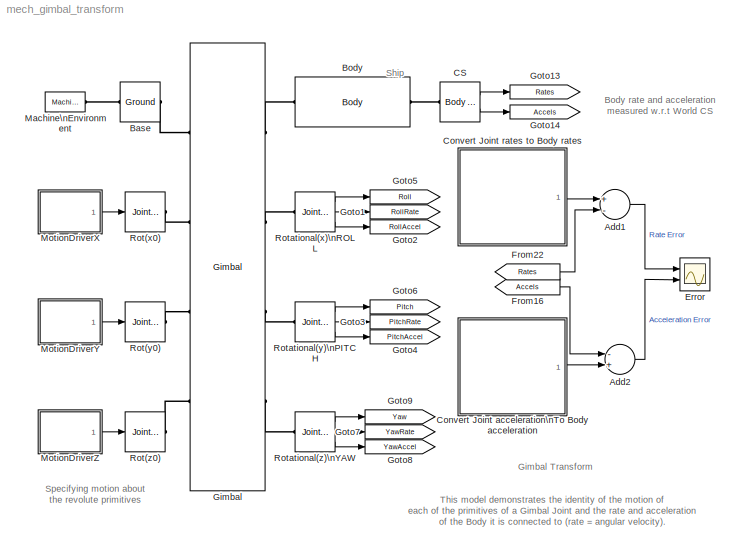
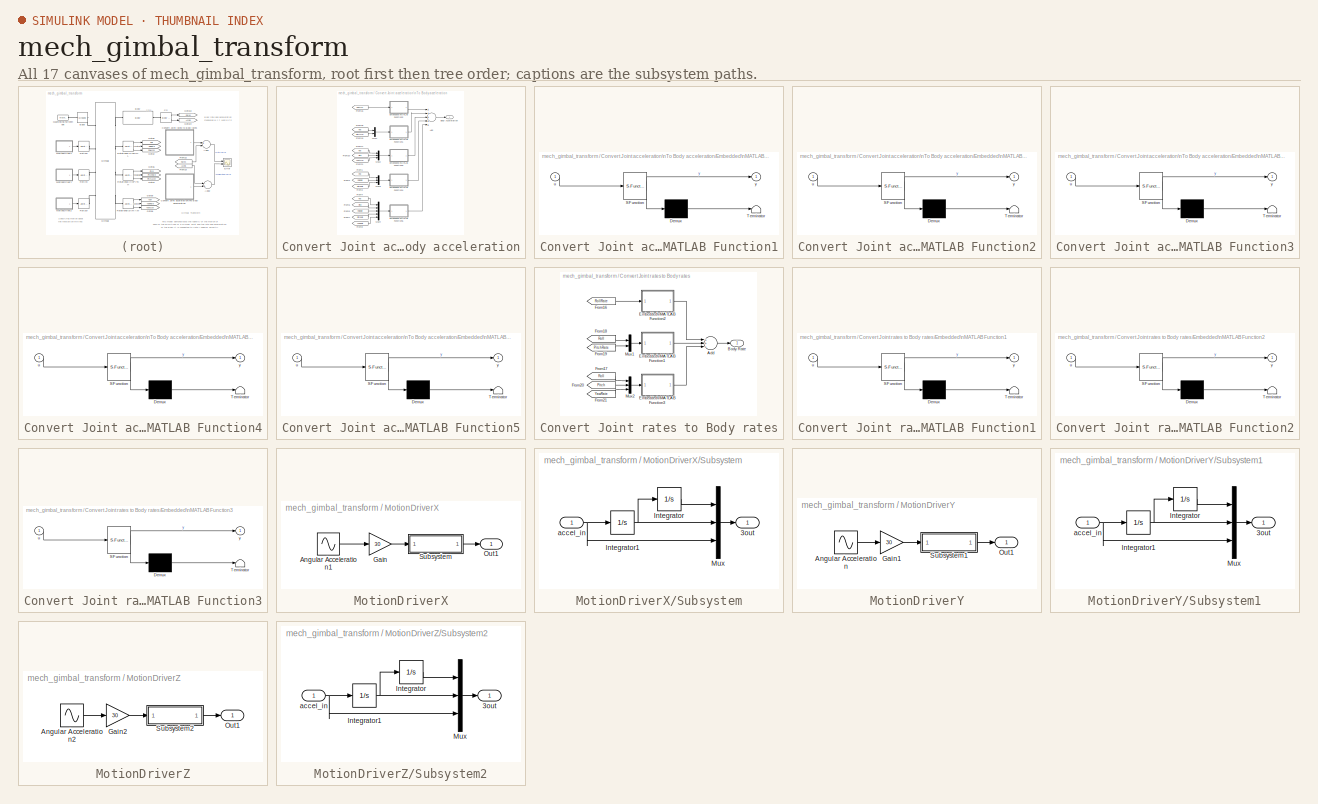
[diagram: thumbnail index - all 17 canvases of the model, root first then tree order]
MODEL mech_gimbal_transform
KIND model
BLOCK [Sum] Add1
  InputSameDT = off
  Inputs = +-
  OutDataType = sfix(16)
  OutDataTypeMode = Inherit via internal rule
  OutDataTypeStr = Inherit: Inherit via internal rule
  OutScaling = 2^-10
  Ports = [2, 1]
  SaturateOnIntegerOverflow = off
BLOCK [Sum] Add2
  InputSameDT = off
  Inputs = -+
  OutDataType = sfix(16)
  OutDataTypeMode = Inherit via internal rule
  OutDataTypeStr = Inherit: Inherit via internal rule
  OutScaling = 2^-10
  Ports = [2, 1]
  SaturateOnIntegerOverflow = off
BLOCK [Reference] Base  REF=mblibv1/Bodies/Ground
  ClassName = Ground
  CoordPosition = [0 0 0]
  CoordPositionUnits = m
  DialogClass = GroundBlock
  DialogController = MECH.DynMechDlgSource
  FunctionWithSeparateData = off
  LeftPortType = env
  MachineId = [0 0]
  PhysicalDomain = Mechanical
  Ports = [0, 0, 0, 0, 0, 1, 1]
  RTWMemSecDataConstants = Inherit from model
  RTWMemSecDataInternal = Inherit from model
  RTWMemSecDataParameters = Inherit from model
  RTWMemSecFuncExecute = Inherit from model
  RTWMemSecFuncInitTerm = Inherit from model
  RightPortType = workingframe
  ShowEnvPort = on
  ShowPortLabels = FromPortIcon
  SourceBlock = mblibv1/Bodies/Ground
  SourceType = Ground
  StateVectorMgrId = -1
  SystemSampleTime = -1
  UserData = DataTag0
  UserDataPersistent = on
BLOCK [Reference] Body  REF=mblibv1/Bodies/Body
  AttachedToCS = 1
  BodyColor = [0.5 0.5 0.5]
  CG = Right$CG$[0 0 0]$WORLD$WORLD$m$[0 0 0]$Euler X-Y-Z$deg$WORLD$false
  CGPos = [0 0 0]
  CGRot = [0 0 0]
  CS0Pos = []
  CS0Rot = []
  CS10Pos = []
  CS10Rot = []
  CS11Pos = []
  CS11Rot = []
  CS12Pos = []
  CS12Rot = []
  CS13Pos = []
  CS13Rot = []
  CS14Pos = []
  CS14Rot = []
  CS15Pos = []
  CS15Rot = []
  CS16Pos = []
  CS16Rot = []
  CS17Pos = []
  CS17Rot = []
  CS18Pos = []
  CS18Rot = []
  CS19Pos = []
  CS19Rot = []
  CS1Pos = [0 0 0]
  CS1Rot = [0 0 0]
  CS20Pos = []
  CS20Rot = []
  CS2Pos = [-87.81 -10 0]
  CS2Rot = [0 0 0]
  CS3Pos = [-87.81  10 0]
  CS3Rot = [0 0 0]
  CS4Pos = [94.99  0 0]
  CS4Rot = [0 0 0]
  CS5Pos = [-87.81 -8 -10]
  CS5Rot = [0 0 0]
  CS6Pos = [-87.81 8 -10]
  CS6Rot = [0 0 0]
  CS7Pos = [80.0  0 -10]
  CS7Rot = [0 0 0]
  CS8Pos = [0 0 0]
  CS8Rot = [0 0 0]
  CS9Pos = []
  CS9Rot = []
  ClassName = Body
  Density = 1
  DensityUnits = kg/m^3
  DensityUse = false
  DialogClass = MechanicalBodyBlock
  DialogController = MECH.DynMechDlgSource
  GraphicsMode = 1
  GraphicsObj = []
  Inertia = [0.06 0 0;0 0.7 0;0 0 0.75]*0.25
  InertiaUnits = kg*m^2
  LConnTagsString = CS1
  LeftPortType = workingframe
  Mass = 1
  MassUnits = kg
  PhysicalDomain = mechanical
  Ports = [0, 0, 0, 0, 0, 1, 1]
  RConnTagsString = CS8
  RightPortType = workingframe
  Shape = Cylinder
  ShapeDims = [1 1]
  ShapeUnits = m
  ShapeUse = false
  SourceBlock = mblibv1/Bodies/Body
  SourceType = Body
  SubClassName = Unknown
  WorkingFrames = Left$CS1$[0 0 0]$WORLD$WORLD$m$[0 0 0]$Euler X-Y-Z$deg$WORLD$true#Right$CS8$[0 0 0]$WORLD$WORLD$m$[0 0 0]$Euler X-Y-Z$deg$WORLD$true#Left$CS2$[-87.81 -10 0]$WORLD$WORLD$cm$[0 0 0]$Euler X-Y-Z$deg$WORLD$false#Left$CS5$[-87.81 -8 -10]$WORLD$WORLD$cm$[0 0 0]$Euler X-Y-Z$deg$WORLD$false#Left$CS3$[-87.81  10 0]$WORLD$WORLD$cm$[0 0 0]$Euler X-Y-Z$deg$WORLD$false#Left$CS6$[-87.81 8 -10]$WORLD$WORLD$cm$[0...<+181ch>
BLOCK [Reference] CS  REF=mblibv1/Sensors & \nActuators/Body Sensor
  Acceleration = off
  AccelerationUnits = m/s^2
  ActiveIO = on
  Angle = on
  AngleUnits = deg
  ArcAcceleration = on
  ArcAccelerationUnits = rad/s^2
  ArcVelocity = on
  ArcVelocityUnits = rad/s
  ClassName = BodySensor
  CoordPosition = off
  CoordPositionUnits = m
  DialogClass = MechanicalSensorBlock
  DialogController = MECH.DynMechDlgSource
  FunctionWithSeparateData = off
  Muxed = off
  OutputVector = [ 3 3 ]
  PhysicalDomain = Mechanical
  PortType = blob
  Ports = [0, 2, 0, 0, 0, 1]
  Pose = off
  Quaternion = on
  QuaternionDDT = off
  QuaternionDT = off
  QuaternionUnits = off
  RTWMemSecDataConstants = Inherit from model
  RTWMemSecDataInternal = Inherit from model
  RTWMemSecDataParameters = Inherit from model
  RTWMemSecFuncExecute = Inherit from model
  RTWMemSecFuncInitTerm = Inherit from model
  ReferenceFrame = Absolute (World)
  ShowPortLabels = FromPortIcon
  SourceBlock = mblibv1/Sensors & \nActuators/Body Sensor
  SourceType = Body Sensor
  SystemSampleTime = -1
  Velocity = off
  VelocityUnits = m/s
  Width = 6
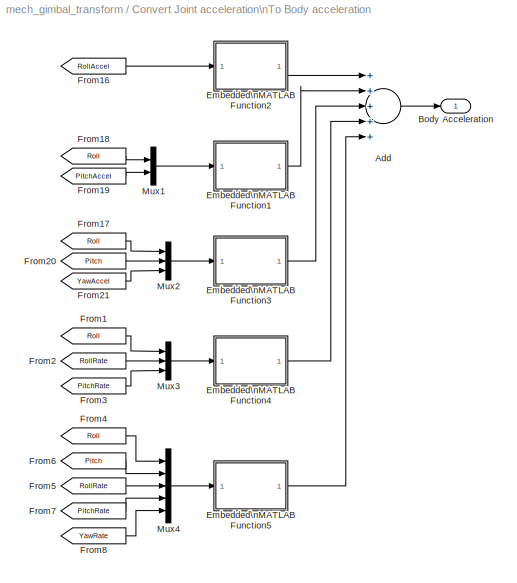
BLOCK [SubSystem] Convert Joint acceleration\nTo Body acceleration
  FunctionWithSeparateData = off
  MaskHideContents = off
  MinAlgLoopOccurrences = off
  Opaque = off
  Ports = [0, 1]
  PropExecContextOutsideSubsystem = off
  RTWSystemCode = Auto
  RequestExecContextInheritance = off
BLOCK [Sum] Convert Joint acceleration\nTo Body acceleration/Add
  InputSameDT = off
  Inputs = +++++
  OutDataType = sfix(16)
  OutDataTypeMode = Inherit via internal rule
  OutDataTypeStr = Inherit: Inherit via internal rule
  OutScaling = 2^-10
  Ports = [5, 1]
  SaturateOnIntegerOverflow = off
BLOCK [Outport] Convert Joint acceleration\nTo Body acceleration/Body Acceleration
  IconDisplay = Port number
  OutDataType = sfix(16)
  OutScaling = 2^0
BLOCK [SubSystem] Convert Joint acceleration\nTo Body acceleration/Embedded\nMATLAB Function1
  FunctionWithSeparateData = off
  MaskDescription = Embedded MATLAB block
  MaskDisplay = disp('fcn');
  MaskHideContents = off
  MaskIconFrame = on
  MaskIconOpaque = off
  MaskIconRotate = none
  MaskIconUnits = autoscale
  MaskSelfModifiable = on
  MaskType = Stateflow
  MinAlgLoopOccurrences = off
  Opaque = off
  PermitHierarchicalResolution = ExplicitOnly
  Ports = [1, 1]
  PropExecContextOutsideSubsystem = off
  RTWSystemCode = Auto
  RequestExecContextInheritance = off
BLOCK [Demux] Convert Joint acceleration\nTo Body acceleration/Embedded\nMATLAB Function1/ Demux 
  Outputs = 1
  Ports = [1, 1]
BLOCK [S-Function] Convert Joint acceleration\nTo Body acceleration/Embedded\nMATLAB Function1/ SFunction 
  EnableBusSupport = off
  FunctionName = sf_sfun
  PortCounts = [1 2]
  Ports = [1, 2]
  Tag = Stateflow S-Function mech_gimbal_transform 4
BLOCK [Terminator] Convert Joint acceleration\nTo Body acceleration/Embedded\nMATLAB Function1/ Terminator 
BLOCK [Inport] Convert Joint acceleration\nTo Body acceleration/Embedded\nMATLAB Function1/u
  IconDisplay = Port number
  OutDataType = sfix(16)
  OutScaling = 2^0
BLOCK [Outport] Convert Joint acceleration\nTo Body acceleration/Embedded\nMATLAB Function1/y
  IconDisplay = Port number
  OutDataType = sfix(16)
  OutScaling = 2^0
BLOCK [SubSystem] Convert Joint acceleration\nTo Body acceleration/Embedded\nMATLAB Function2
  FunctionWithSeparateData = off
  MaskDescription = Embedded MATLAB block
  MaskDisplay = disp('fcn');
  MaskHideContents = off
  MaskIconFrame = on
  MaskIconOpaque = off
  MaskIconRotate = none
  MaskIconUnits = autoscale
  MaskSelfModifiable = on
  MaskType = Stateflow
  MinAlgLoopOccurrences = off
  Opaque = off
  PermitHierarchicalResolution = ExplicitOnly
  Ports = [1, 1]
  PropExecContextOutsideSubsystem = off
  RTWSystemCode = Auto
  RequestExecContextInheritance = off
BLOCK [Demux] Convert Joint acceleration\nTo Body acceleration/Embedded\nMATLAB Function2/ Demux 
  Outputs = 1
  Ports = [1, 1]
BLOCK [S-Function] Convert Joint acceleration\nTo Body acceleration/Embedded\nMATLAB Function2/ SFunction 
  EnableBusSupport = off
  FunctionName = sf_sfun
  PortCounts = [1 2]
  Ports = [1, 2]
  Tag = Stateflow S-Function mech_gimbal_transform 5
BLOCK [Terminator] Convert Joint acceleration\nTo Body acceleration/Embedded\nMATLAB Function2/ Terminator 
BLOCK [Inport] Convert Joint acceleration\nTo Body acceleration/Embedded\nMATLAB Function2/u
  IconDisplay = Port number
  OutDataType = sfix(16)
  OutScaling = 2^0
BLOCK [Outport] Convert Joint acceleration\nTo Body acceleration/Embedded\nMATLAB Function2/y
  IconDisplay = Port number
  OutDataType = sfix(16)
  OutScaling = 2^0
BLOCK [SubSystem] Convert Joint acceleration\nTo Body acceleration/Embedded\nMATLAB Function3
  FunctionWithSeparateData = off
  MaskDescription = Embedded MATLAB block
  MaskDisplay = disp('fcn');
  MaskHideContents = off
  MaskIconFrame = on
  MaskIconOpaque = off
  MaskIconRotate = none
  MaskIconUnits = autoscale
  MaskSelfModifiable = on
  MaskType = Stateflow
  MinAlgLoopOccurrences = off
  Opaque = off
  PermitHierarchicalResolution = ExplicitOnly
  Ports = [1, 1]
  PropExecContextOutsideSubsystem = off
  RTWSystemCode = Auto
  RequestExecContextInheritance = off
BLOCK [Demux] Convert Joint acceleration\nTo Body acceleration/Embedded\nMATLAB Function3/ Demux 
  Outputs = 1
  Ports = [1, 1]
BLOCK [S-Function] Convert Joint acceleration\nTo Body acceleration/Embedded\nMATLAB Function3/ SFunction 
  EnableBusSupport = off
  FunctionName = sf_sfun
  PortCounts = [1 2]
  Ports = [1, 2]
  Tag = Stateflow S-Function mech_gimbal_transform 6
BLOCK [Terminator] Convert Joint acceleration\nTo Body acceleration/Embedded\nMATLAB Function3/ Terminator 
BLOCK [Inport] Convert Joint acceleration\nTo Body acceleration/Embedded\nMATLAB Function3/u
  IconDisplay = Port number
  OutDataType = sfix(16)
  OutScaling = 2^0
BLOCK [Outport] Convert Joint acceleration\nTo Body acceleration/Embedded\nMATLAB Function3/y
  IconDisplay = Port number
  OutDataType = sfix(16)
  OutScaling = 2^0
BLOCK [SubSystem] Convert Joint acceleration\nTo Body acceleration/Embedded\nMATLAB Function4
  FunctionWithSeparateData = off
  MaskDescription = Embedded MATLAB block
  MaskDisplay = disp('fcn');
  MaskHideContents = off
  MaskIconFrame = on
  MaskIconOpaque = off
  MaskIconRotate = none
  MaskIconUnits = autoscale
  MaskSelfModifiable = on
  MaskType = Stateflow
  MinAlgLoopOccurrences = off
  Opaque = off
  PermitHierarchicalResolution = ExplicitOnly
  Ports = [1, 1]
  PropExecContextOutsideSubsystem = off
  RTWSystemCode = Auto
  RequestExecContextInheritance = off
BLOCK [Demux] Convert Joint acceleration\nTo Body acceleration/Embedded\nMATLAB Function4/ Demux 
  Outputs = 1
  Ports = [1, 1]
BLOCK [S-Function] Convert Joint acceleration\nTo Body acceleration/Embedded\nMATLAB Function4/ SFunction 
  EnableBusSupport = off
  FunctionName = sf_sfun
  PortCounts = [1 2]
  Ports = [1, 2]
  Tag = Stateflow S-Function mech_gimbal_transform 7
BLOCK [Terminator] Convert Joint acceleration\nTo Body acceleration/Embedded\nMATLAB Function4/ Terminator 
BLOCK [Inport] Convert Joint acceleration\nTo Body acceleration/Embedded\nMATLAB Function4/u
  IconDisplay = Port number
  OutDataType = sfix(16)
  OutScaling = 2^0
BLOCK [Outport] Convert Joint acceleration\nTo Body acceleration/Embedded\nMATLAB Function4/y
  IconDisplay = Port number
  OutDataType = sfix(16)
  OutScaling = 2^0
BLOCK [SubSystem] Convert Joint acceleration\nTo Body acceleration/Embedded\nMATLAB Function5
  FunctionWithSeparateData = off
  MaskDescription = Embedded MATLAB block
  MaskDisplay = disp('fcn');
  MaskHideContents = off
  MaskIconFrame = on
  MaskIconOpaque = off
  MaskIconRotate = none
  MaskIconUnits = autoscale
  MaskSelfModifiable = on
  MaskType = Stateflow
  MinAlgLoopOccurrences = off
  Opaque = off
  PermitHierarchicalResolution = ExplicitOnly
  Ports = [1, 1]
  PropExecContextOutsideSubsystem = off
  RTWSystemCode = Auto
  RequestExecContextInheritance = off
BLOCK [Demux] Convert Joint acceleration\nTo Body acceleration/Embedded\nMATLAB Function5/ Demux 
  Outputs = 1
  Ports = [1, 1]
BLOCK [S-Function] Convert Joint acceleration\nTo Body acceleration/Embedded\nMATLAB Function5/ SFunction 
  EnableBusSupport = off
  FunctionName = sf_sfun
  PortCounts = [1 2]
  Ports = [1, 2]
  Tag = Stateflow S-Function mech_gimbal_transform 8
BLOCK [Terminator] Convert Joint acceleration\nTo Body acceleration/Embedded\nMATLAB Function5/ Terminator 
BLOCK [Inport] Convert Joint acceleration\nTo Body acceleration/Embedded\nMATLAB Function5/u
  IconDisplay = Port number
  OutDataType = sfix(16)
  OutScaling = 2^0
BLOCK [Outport] Convert Joint acceleration\nTo Body acceleration/Embedded\nMATLAB Function5/y
  IconDisplay = Port number
  OutDataType = sfix(16)
  OutScaling = 2^0
BLOCK [From] Convert Joint acceleration\nTo Body acceleration/From1
  CloseFcn = tagdialog Close
  GotoTag = Roll
  TagVisibility = global
BLOCK [From] Convert Joint acceleration\nTo Body acceleration/From16
  CloseFcn = tagdialog Close
  GotoTag = RollAccel
  TagVisibility = global
BLOCK [From] Convert Joint acceleration\nTo Body acceleration/From17
  CloseFcn = tagdialog Close
  GotoTag = Roll
  TagVisibility = global
BLOCK [From] Convert Joint acceleration\nTo Body acceleration/From18
  CloseFcn = tagdialog Close
  GotoTag = Roll
  TagVisibility = global
BLOCK [From] Convert Joint acceleration\nTo Body acceleration/From19
  CloseFcn = tagdialog Close
  GotoTag = PitchAccel
  TagVisibility = global
BLOCK [From] Convert Joint acceleration\nTo Body acceleration/From2
  CloseFcn = tagdialog Close
  GotoTag = RollRate
  TagVisibility = global
BLOCK [From] Convert Joint acceleration\nTo Body acceleration/From20
  CloseFcn = tagdialog Close
  GotoTag = Pitch
  TagVisibility = global
BLOCK [From] Convert Joint acceleration\nTo Body acceleration/From21
  CloseFcn = tagdialog Close
  GotoTag = YawAccel
  TagVisibility = global
BLOCK [From] Convert Joint acceleration\nTo Body acceleration/From3
  CloseFcn = tagdialog Close
  GotoTag = PitchRate
  TagVisibility = global
BLOCK [From] Convert Joint acceleration\nTo Body acceleration/From4
  CloseFcn = tagdialog Close
  GotoTag = Roll
  TagVisibility = global
BLOCK [From] Convert Joint acceleration\nTo Body acceleration/From5
  CloseFcn = tagdialog Close
  GotoTag = RollRate
  TagVisibility = global
BLOCK [From] Convert Joint acceleration\nTo Body acceleration/From6
  CloseFcn = tagdialog Close
  GotoTag = Pitch
  TagVisibility = global
BLOCK [From] Convert Joint acceleration\nTo Body acceleration/From7
  CloseFcn = tagdialog Close
  GotoTag = PitchRate
  TagVisibility = global
BLOCK [From] Convert Joint acceleration\nTo Body acceleration/From8
  CloseFcn = tagdialog Close
  GotoTag = YawRate
  TagVisibility = global
BLOCK [Mux] Convert Joint acceleration\nTo Body acceleration/Mux1
  DisplayOption = bar
  Inputs = 2
  Ports = [2, 1]
BLOCK [Mux] Convert Joint acceleration\nTo Body acceleration/Mux2
  DisplayOption = bar
  Inputs = 3
  Ports = [3, 1]
BLOCK [Mux] Convert Joint acceleration\nTo Body acceleration/Mux3
  DisplayOption = bar
  Inputs = 3
  Ports = [3, 1]
BLOCK [Mux] Convert Joint acceleration\nTo Body acceleration/Mux4
  DisplayOption = bar
  Inputs = 5
  Ports = [5, 1]
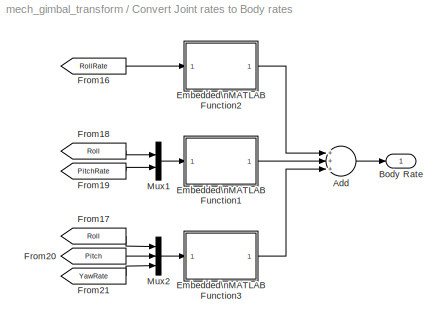
BLOCK [SubSystem] Convert Joint rates to Body rates
  FunctionWithSeparateData = off
  MaskHideContents = off
  MinAlgLoopOccurrences = off
  Opaque = off
  Ports = [0, 1]
  PropExecContextOutsideSubsystem = off
  RTWSystemCode = Auto
  RequestExecContextInheritance = off
BLOCK [Sum] Convert Joint rates to Body rates/Add
  InputSameDT = off
  Inputs = +++
  OutDataType = sfix(16)
  OutDataTypeMode = Inherit via internal rule
  OutDataTypeStr = Inherit: Inherit via internal rule
  OutScaling = 2^-10
  Ports = [3, 1]
  SaturateOnIntegerOverflow = off
BLOCK [Outport] Convert Joint rates to Body rates/Body Rate
  IconDisplay = Port number
  OutDataType = sfix(16)
  OutScaling = 2^0
BLOCK [SubSystem] Convert Joint rates to Body rates/Embedded\nMATLAB Function1
  FunctionWithSeparateData = off
  MaskDescription = Embedded MATLAB block
  MaskDisplay = disp('fcn');
  MaskHideContents = off
  MaskIconFrame = on
  MaskIconOpaque = off
  MaskIconRotate = none
  MaskIconUnits = autoscale
  MaskSelfModifiable = on
  MaskType = Stateflow
  MinAlgLoopOccurrences = off
  Opaque = off
  PermitHierarchicalResolution = ExplicitOnly
  Ports = [1, 1]
  PropExecContextOutsideSubsystem = off
  RTWSystemCode = Auto
  RequestExecContextInheritance = off
BLOCK [Demux] Convert Joint rates to Body rates/Embedded\nMATLAB Function1/ Demux 
  Outputs = 1
  Ports = [1, 1]
BLOCK [S-Function] Convert Joint rates to Body rates/Embedded\nMATLAB Function1/ SFunction 
  EnableBusSupport = off
  FunctionName = sf_sfun
  PortCounts = [1 2]
  Ports = [1, 2]
  Tag = Stateflow S-Function mech_gimbal_transform 1
BLOCK [Terminator] Convert Joint rates to Body rates/Embedded\nMATLAB Function1/ Terminator 
BLOCK [Inport] Convert Joint rates to Body rates/Embedded\nMATLAB Function1/u
  IconDisplay = Port number
  OutDataType = sfix(16)
  OutScaling = 2^0
BLOCK [Outport] Convert Joint rates to Body rates/Embedded\nMATLAB Function1/y
  IconDisplay = Port number
  OutDataType = sfix(16)
  OutScaling = 2^0
BLOCK [SubSystem] Convert Joint rates to Body rates/Embedded\nMATLAB Function2
  FunctionWithSeparateData = off
  MaskDescription = Embedded MATLAB block
  MaskDisplay = disp('fcn');
  MaskHideContents = off
  MaskIconFrame = on
  MaskIconOpaque = off
  MaskIconRotate = none
  MaskIconUnits = autoscale
  MaskSelfModifiable = on
  MaskType = Stateflow
  MinAlgLoopOccurrences = off
  Opaque = off
  PermitHierarchicalResolution = ExplicitOnly
  Ports = [1, 1]
  PropExecContextOutsideSubsystem = off
  RTWSystemCode = Auto
  RequestExecContextInheritance = off
BLOCK [Demux] Convert Joint rates to Body rates/Embedded\nMATLAB Function2/ Demux 
  Outputs = 1
  Ports = [1, 1]
BLOCK [S-Function] Convert Joint rates to Body rates/Embedded\nMATLAB Function2/ SFunction 
  EnableBusSupport = off
  FunctionName = sf_sfun
  PortCounts = [1 2]
  Ports = [1, 2]
  Tag = Stateflow S-Function mech_gimbal_transform 2
BLOCK [Terminator] Convert Joint rates to Body rates/Embedded\nMATLAB Function2/ Terminator 
BLOCK [Inport] Convert Joint rates to Body rates/Embedded\nMATLAB Function2/u
  IconDisplay = Port number
  OutDataType = sfix(16)
  OutScaling = 2^0
BLOCK [Outport] Convert Joint rates to Body rates/Embedded\nMATLAB Function2/y
  IconDisplay = Port number
  OutDataType = sfix(16)
  OutScaling = 2^0
BLOCK [SubSystem] Convert Joint rates to Body rates/Embedded\nMATLAB Function3
  FunctionWithSeparateData = off
  MaskDescription = Embedded MATLAB block
  MaskDisplay = disp('fcn');
  MaskHideContents = off
  MaskIconFrame = on
  MaskIconOpaque = off
  MaskIconRotate = none
  MaskIconUnits = autoscale
  MaskSelfModifiable = on
  MaskType = Stateflow
  MinAlgLoopOccurrences = off
  Opaque = off
  PermitHierarchicalResolution = ExplicitOnly
  Ports = [1, 1]
  PropExecContextOutsideSubsystem = off
  RTWSystemCode = Auto
  RequestExecContextInheritance = off
BLOCK [Demux] Convert Joint rates to Body rates/Embedded\nMATLAB Function3/ Demux 
  Outputs = 1
  Ports = [1, 1]
BLOCK [S-Function] Convert Joint rates to Body rates/Embedded\nMATLAB Function3/ SFunction 
  EnableBusSupport = off
  FunctionName = sf_sfun
  PortCounts = [1 2]
  Ports = [1, 2]
  Tag = Stateflow S-Function mech_gimbal_transform 3
BLOCK [Terminator] Convert Joint rates to Body rates/Embedded\nMATLAB Function3/ Terminator 
BLOCK [Inport] Convert Joint rates to Body rates/Embedded\nMATLAB Function3/u
  IconDisplay = Port number
  OutDataType = sfix(16)
  OutScaling = 2^0
BLOCK [Outport] Convert Joint rates to Body rates/Embedded\nMATLAB Function3/y
  IconDisplay = Port number
  OutDataType = sfix(16)
  OutScaling = 2^0
BLOCK [From] Convert Joint rates to Body rates/From16
  CloseFcn = tagdialog Close
  GotoTag = RollRate
  TagVisibility = global
BLOCK [From] Convert Joint rates to Body rates/From17
  CloseFcn = tagdialog Close
  GotoTag = Roll
  TagVisibility = global
BLOCK [From] Convert Joint rates to Body rates/From18
  CloseFcn = tagdialog Close
  GotoTag = Roll
  TagVisibility = global
BLOCK [From] Convert Joint rates to Body rates/From19
  CloseFcn = tagdialog Close
  GotoTag = PitchRate
  TagVisibility = global
BLOCK [From] Convert Joint rates to Body rates/From20
  CloseFcn = tagdialog Close
  GotoTag = Pitch
  TagVisibility = global
BLOCK [From] Convert Joint rates to Body rates/From21
  CloseFcn = tagdialog Close
  GotoTag = YawRate
  TagVisibility = global
BLOCK [Mux] Convert Joint rates to Body rates/Mux1
  DisplayOption = bar
  Inputs = 2
  Ports = [2, 1]
BLOCK [Mux] Convert Joint rates to Body rates/Mux2
  DisplayOption = bar
  Inputs = 3
  Ports = [3, 1]
BLOCK [Scope] Error
  DataFormat = StructureWithTime
  Floating = off
  NumInputPorts = 2
  Ports = [2]
  SampleTime = 0
  TimeRange = 10
  YMax = 1~8.000000000000001e-018
  YMin = -1~-8.000000000000001e-018
BLOCK [From] From16
  CloseFcn = tagdialog Close
  GotoTag = Accels
  TagVisibility = global
BLOCK [From] From22
  CloseFcn = tagdialog Close
  GotoTag = Rates
  TagVisibility = global
BLOCK [Reference] Gimbal  REF=mblibv1/Joints/Gimbal
  ClassName = Joint
  CutJoint = off
  DialogClass = JointBlock
  DialogController = MECH.DynMechDlgSource
  LConnTagsString = __newl0|SA1|SA2|SA3
  LeftPortType = blob
  MarkAsCut = off
  NumSAPorts = 6
  PhysicalDomain = mechanical
  Ports = [0, 0, 0, 0, 0, 4, 4]
  PrimitiveProps = R1$WORLD$[1 0 0]$revolute#R2$WORLD$[0 1 0]$revolute#R3$WORLD$[0 0 1]$revolute
  Primitives = revolute_revolute_revolute
  R1Axis = [1 0 0]
  R2Axis = [0 1 0]
  R3Axis = [0 0 1]
  RConnTagsString = __newr0|SA1|SA2|SA3
  RightPortType = blob
  SourceBlock = mblibv1/Joints/Gimbal
  SourceType = Gimbal
  SubClassName = Unknown
BLOCK [Goto] Goto1
  GotoTag = RollRate
  TagVisibility = global
BLOCK [Goto] Goto13
  GotoTag = Rates
  TagVisibility = global
BLOCK [Goto] Goto14
  GotoTag = Accels
  TagVisibility = global
BLOCK [Goto] Goto2
  GotoTag = RollAccel
  TagVisibility = global
BLOCK [Goto] Goto3
  GotoTag = PitchRate
  TagVisibility = global
BLOCK [Goto] Goto4
  GotoTag = PitchAccel
  TagVisibility = global
BLOCK [Goto] Goto5
  GotoTag = Roll
  TagVisibility = global
BLOCK [Goto] Goto6
  GotoTag = Pitch
  TagVisibility = global
BLOCK [Goto] Goto7
  GotoTag = YawRate
  TagVisibility = global
BLOCK [Goto] Goto8
  GotoTag = YawAccel
  TagVisibility = global
BLOCK [Goto] Goto9
  GotoTag = Yaw
  TagVisibility = global
BLOCK [Reference] Machine\nEnvironment  REF=mblibv1/Bodies/Machine\nEnvironment
  AnalysisType = Forward dynamics
  AngularAssemblyTolerance = 1e-4
  AngularAssemblyToleranceUnits = rad
  ClassName = Environment
  ConstraintAbsTolerance = 1e-4
  ConstraintRelTolerance = 1e-4
  ConstraintSolverType = Stabilizing
  DialogController = MECH.DialogSource
  DialogTemplateClass = MECH.MachineEnvironment
  Dimensionality = 3D Only
  FunctionWithSeparateData = off
  Gravity = [0 0 0]
  GravityAsSignal = off
  GravityUnits = m/s^2
  LinearAssemblyTolerance = 1e-6
  LinearAssemblyToleranceUnits = m
  PerturbationSize = 1e-5
  PhysicalDomain = Mechanical
  PortType = env
  Ports = [0, 0, 0, 0, 0, 0, 1]
  RTWMemSecDataConstants = Inherit from model
  RTWMemSecDataInternal = Inherit from model
  RTWMemSecDataParameters = Inherit from model
  RTWMemSecFuncExecute = Inherit from model
  RTWMemSecFuncInitTerm = Inherit from model
  RedundancyAnalysisTolerance = 1e-14
  RedundancyAnalysisToleranceType = Automatically select tolerance
  ShowPortLabels = FromPortIcon
  SourceBlock = mblibv1/Bodies/Machine\nEnvironment
  SourceType = Machine Environment
  StatePerturbationType = Adaptive
  SyncWhenCopied = off
  SystemSampleTime = -1
  Tag = Factory ground
  UseRobustSingularityHandling = on
  VisualizeMachine = on
BLOCK [SubSystem] MotionDriverX
  FunctionWithSeparateData = off
  MaskHideContents = off
  MinAlgLoopOccurrences = off
  Opaque = off
  Ports = [0, 1]
  PropExecContextOutsideSubsystem = off
  RTWSystemCode = Auto
  RequestExecContextInheritance = off
BLOCK [Sin] MotionDriverX/Angular Acceleration1
  Amplitude = .1
  Ports = [0, 1]
  SampleTime = 0
BLOCK [Gain] MotionDriverX/Gain
  Gain = 30
  OutDataType = sfix(16)
  OutScaling = 2^0
  ParameterDataType = sfix(16)
  ParameterScaling = 2^0
BLOCK [Outport] MotionDriverX/Out1
  IconDisplay = Port number
  OutDataType = sfix(16)
  OutScaling = 2^0
BLOCK [SubSystem] MotionDriverX/Subsystem
  FunctionWithSeparateData = off
  MaskHideContents = off
  MinAlgLoopOccurrences = off
  Opaque = off
  Ports = [1, 1]
  PropExecContextOutsideSubsystem = off
  RTWSystemCode = Auto
  RequestExecContextInheritance = off
BLOCK [Outport] MotionDriverX/Subsystem/3out
  IconDisplay = Port number
  OutDataType = sfix(16)
  OutScaling = 2^0
BLOCK [Integrator] MotionDriverX/Subsystem/Integrator
  Ports = [1, 1]
BLOCK [Integrator] MotionDriverX/Subsystem/Integrator1
  Ports = [1, 1]
BLOCK [Mux] MotionDriverX/Subsystem/Mux
  DisplayOption = bar
  Inputs = 3
  Ports = [3, 1]
BLOCK [Inport] MotionDriverX/Subsystem/accel_in
  IconDisplay = Port number
  OutDataType = sfix(16)
  OutScaling = 2^0
BLOCK [SubSystem] MotionDriverY
  FunctionWithSeparateData = off
  MaskHideContents = off
  MinAlgLoopOccurrences = off
  Opaque = off
  Ports = [0, 1]
  PropExecContextOutsideSubsystem = off
  RTWSystemCode = Auto
  RequestExecContextInheritance = off
BLOCK [Sin] MotionDriverY/Angular Acceleration
  Amplitude = .1
  Phase = 30
  Ports = [0, 1]
  SampleTime = 0
BLOCK [Gain] MotionDriverY/Gain1
  Gain = 30
  OutDataType = sfix(16)
  OutScaling = 2^0
  ParameterDataType = sfix(16)
  ParameterScaling = 2^0
BLOCK [Outport] MotionDriverY/Out1
  IconDisplay = Port number
  OutDataType = sfix(16)
  OutScaling = 2^0
BLOCK [SubSystem] MotionDriverY/Subsystem1
  FunctionWithSeparateData = off
  MaskHideContents = off
  MinAlgLoopOccurrences = off
  Opaque = off
  Ports = [1, 1]
  PropExecContextOutsideSubsystem = off
  RTWSystemCode = Auto
  RequestExecContextInheritance = off
BLOCK [Outport] MotionDriverY/Subsystem1/3out
  IconDisplay = Port number
  OutDataType = sfix(16)
  OutScaling = 2^0
BLOCK [Integrator] MotionDriverY/Subsystem1/Integrator
  Ports = [1, 1]
BLOCK [Integrator] MotionDriverY/Subsystem1/Integrator1
  Ports = [1, 1]
BLOCK [Mux] MotionDriverY/Subsystem1/Mux
  DisplayOption = bar
  Inputs = 3
  Ports = [3, 1]
BLOCK [Inport] MotionDriverY/Subsystem1/accel_in
  IconDisplay = Port number
  OutDataType = sfix(16)
  OutScaling = 2^0
BLOCK [SubSystem] MotionDriverZ
  FunctionWithSeparateData = off
  MaskHideContents = off
  MinAlgLoopOccurrences = off
  Opaque = off
  Ports = [0, 1]
  PropExecContextOutsideSubsystem = off
  RTWSystemCode = Auto
  RequestExecContextInheritance = off
BLOCK [Sin] MotionDriverZ/Angular Acceleration2
  Amplitude = .1
  Ports = [0, 1]
  SampleTime = 0
BLOCK [Gain] MotionDriverZ/Gain2
  Gain = 30
  OutDataType = sfix(16)
  OutScaling = 2^0
  ParameterDataType = sfix(16)
  ParameterScaling = 2^0
BLOCK [Outport] MotionDriverZ/Out1
  IconDisplay = Port number
  OutDataType = sfix(16)
  OutScaling = 2^0
BLOCK [SubSystem] MotionDriverZ/Subsystem2
  FunctionWithSeparateData = off
  MaskHideContents = off
  MinAlgLoopOccurrences = off
  Opaque = off
  Ports = [1, 1]
  PropExecContextOutsideSubsystem = off
  RTWSystemCode = Auto
  RequestExecContextInheritance = off
BLOCK [Outport] MotionDriverZ/Subsystem2/3out
  IconDisplay = Port number
  OutDataType = sfix(16)
  OutScaling = 2^0
BLOCK [Integrator] MotionDriverZ/Subsystem2/Integrator
  Ports = [1, 1]
BLOCK [Integrator] MotionDriverZ/Subsystem2/Integrator1
  Ports = [1, 1]
BLOCK [Mux] MotionDriverZ/Subsystem2/Mux
  DisplayOption = bar
  Inputs = 3
  Ports = [3, 1]
BLOCK [Inport] MotionDriverZ/Subsystem2/accel_in
  IconDisplay = Port number
  OutDataType = sfix(16)
  OutScaling = 2^0
BLOCK [Reference] Rot(x0)  REF=mblibv1/Sensors & \nActuators/Joint Actuator
  AccelerationUnits = m/s^2
  ActiveIO = on
  ActuationStyle = Motion
  AngleUnits = deg
  ArcAccelerationUnits = deg/s^2
  ArcVelocityUnits = deg/s
  ClassName = JointActuator
  CoordPositionUnits = m
  DialogClass = MechanicalActuatorBlock
  DialogController = MECH.DynMechDlgSource
  ForceUnits = N
  FunctionWithSeparateData = off
  PhysicalDomain = Mechanical
  PortType = blob
  Ports = [1, 0, 0, 0, 0, 0, 1]
  Primitive = R1
  RTWMemSecDataConstants = Inherit from model
  RTWMemSecDataInternal = Inherit from model
  RTWMemSecDataParameters = Inherit from model
  RTWMemSecFuncExecute = Inherit from model
  RTWMemSecFuncInitTerm = Inherit from model
  ReferenceFrame = Absolute (INERTIAL)
  ShowPortLabels = FromPortIcon
  SourceBlock = mblibv1/Sensors & \nActuators/Joint Actuator
  SourceType = Joint Actuator
  SystemSampleTime = -1
  TorqueUnits = N-m
  VelocityUnits = m/s
  Width = 3
BLOCK [Reference] Rot(y0)  REF=mblibv1/Sensors & \nActuators/Joint Actuator
  AccelerationUnits = m/s^2
  ActiveIO = on
  ActuationStyle = Motion
  AngleUnits = deg
  ArcAccelerationUnits = deg/s^2
  ArcVelocityUnits = deg/s
  ClassName = JointActuator
  CoordPositionUnits = m
  DialogClass = MechanicalActuatorBlock
  DialogController = MECH.DynMechDlgSource
  ForceUnits = N
  FunctionWithSeparateData = off
  PhysicalDomain = Mechanical
  PortType = blob
  Ports = [1, 0, 0, 0, 0, 0, 1]
  Primitive = R2
  RTWMemSecDataConstants = Inherit from model
  RTWMemSecDataInternal = Inherit from model
  RTWMemSecDataParameters = Inherit from model
  RTWMemSecFuncExecute = Inherit from model
  RTWMemSecFuncInitTerm = Inherit from model
  ReferenceFrame = Absolute (INERTIAL)
  ShowPortLabels = FromPortIcon
  SourceBlock = mblibv1/Sensors & \nActuators/Joint Actuator
  SourceType = Joint Actuator
  SystemSampleTime = -1
  TorqueUnits = N-m
  VelocityUnits = m/s
  Width = 3
BLOCK [Reference] Rot(z0)  REF=mblibv1/Sensors & \nActuators/Joint Actuator
  AccelerationUnits = m/s^2
  ActiveIO = on
  ActuationStyle = Motion
  AngleUnits = deg
  ArcAccelerationUnits = deg/s^2
  ArcVelocityUnits = deg/s
  ClassName = JointActuator
  CoordPositionUnits = m
  DialogClass = MechanicalActuatorBlock
  DialogController = MECH.DynMechDlgSource
  ForceUnits = N
  FunctionWithSeparateData = off
  PhysicalDomain = Mechanical
  PortType = blob
  Ports = [1, 0, 0, 0, 0, 0, 1]
  Primitive = R3
  RTWMemSecDataConstants = Inherit from model
  RTWMemSecDataInternal = Inherit from model
  RTWMemSecDataParameters = Inherit from model
  RTWMemSecFuncExecute = Inherit from model
  RTWMemSecFuncInitTerm = Inherit from model
  ReferenceFrame = Absolute (INERTIAL)
  ShowPortLabels = FromPortIcon
  SourceBlock = mblibv1/Sensors & \nActuators/Joint Actuator
  SourceType = Joint Actuator
  SystemSampleTime = -1
  TorqueUnits = N-m
  VelocityUnits = m/s
  Width = 3
BLOCK [Reference] Rotational(x)\nROLL  REF=mblibv1/Sensors & \nActuators/Joint Sensor
  Acceleration = off
  AccelerationUnits = m/s^2
  ActiveIO = on
  Angle = on
  AngleUnits = rad
  ArcAcceleration = on
  ArcAccelerationUnits = rad/s^2
  ArcVelocity = on
  ArcVelocityUnits = rad/s
  ClassName = JointSensor
  CoordPosition = on
  CoordPositionUnits = m
  DialogClass = MechanicalSensorBlock
  DialogController = MECH.DynMechDlgSource
  Force = off
  ForceUnits = N
  FunctionWithSeparateData = off
  Muxed = off
  OutputVector = [ 1 1 1 ]
  PhysicalDomain = Mechanical
  PortType = blob
  Ports = [0, 3, 0, 0, 0, 1]
  Pose = off
  Primitive = R1
  Quaternion = on
  QuaternionDDT = off
  QuaternionDT = off
  QuaternionUnits = off
  RTWMemSecDataConstants = Inherit from model
  RTWMemSecDataInternal = Inherit from model
  RTWMemSecDataParameters = Inherit from model
  RTWMemSecFuncExecute = Inherit from model
  RTWMemSecFuncInitTerm = Inherit from model
  ReactionForce = off
  ReactionForceUnits = N
  ReactionMoment = off
  ReactionMomentUnits = N-m
  ReactionReferenceFrame = Absolute (World)
  ReactionSensedSide = Base
  ReferenceFrame = Absolute (INERTIAL)
  ShowPortLabels = FromPortIcon
  SourceBlock = mblibv1/Sensors & \nActuators/Joint Sensor
  SourceType = Joint Sensor
  SystemSampleTime = -1
  Torque = off
  TorqueUnits = N-m
  Velocity = off
  VelocityUnits = m/s
  Width = 3
BLOCK [Reference] Rotational(y)\nPITCH  REF=mblibv1/Sensors & \nActuators/Joint Sensor
  Acceleration = off
  AccelerationUnits = m/s^2
  ActiveIO = on
  Angle = on
  AngleUnits = rad
  ArcAcceleration = on
  ArcAccelerationUnits = rad/s^2
  ArcVelocity = on
  ArcVelocityUnits = rad/s
  ClassName = JointSensor
  CoordPosition = on
  CoordPositionUnits = m
  DialogClass = MechanicalSensorBlock
  DialogController = MECH.DynMechDlgSource
  Force = off
  ForceUnits = N
  FunctionWithSeparateData = off
  Muxed = off
  OutputVector = [ 1 1 1 ]
  PhysicalDomain = Mechanical
  PortType = blob
  Ports = [0, 3, 0, 0, 0, 1]
  Pose = off
  Primitive = R2
  Quaternion = on
  QuaternionDDT = off
  QuaternionDT = off
  QuaternionUnits = off
  RTWMemSecDataConstants = Inherit from model
  RTWMemSecDataInternal = Inherit from model
  RTWMemSecDataParameters = Inherit from model
  RTWMemSecFuncExecute = Inherit from model
  RTWMemSecFuncInitTerm = Inherit from model
  ReactionForce = off
  ReactionForceUnits = N
  ReactionMoment = off
  ReactionMomentUnits = N-m
  ReactionReferenceFrame = Absolute (World)
  ReactionSensedSide = Base
  ReferenceFrame = Absolute (INERTIAL)
  ShowPortLabels = FromPortIcon
  SourceBlock = mblibv1/Sensors & \nActuators/Joint Sensor
  SourceType = Joint Sensor
  SystemSampleTime = -1
  Torque = off
  TorqueUnits = N-m
  Velocity = off
  VelocityUnits = m/s
  Width = 3
BLOCK [Reference] Rotational(z)\nYAW  REF=mblibv1/Sensors & \nActuators/Joint Sensor
  Acceleration = off
  AccelerationUnits = m/s^2
  ActiveIO = on
  Angle = on
  AngleUnits = rad
  ArcAcceleration = on
  ArcAccelerationUnits = rad/s^2
  ArcVelocity = on
  ArcVelocityUnits = rad/s
  ClassName = JointSensor
  CoordPosition = on
  CoordPositionUnits = m
  DialogClass = MechanicalSensorBlock
  DialogController = MECH.DynMechDlgSource
  Force = off
  ForceUnits = N
  FunctionWithSeparateData = off
  Muxed = off
  OutputVector = [ 1 1 1 ]
  PhysicalDomain = Mechanical
  PortType = blob
  Ports = [0, 3, 0, 0, 0, 1]
  Pose = off
  Primitive = R3
  Quaternion = on
  QuaternionDDT = off
  QuaternionDT = off
  QuaternionUnits = off
  RTWMemSecDataConstants = Inherit from model
  RTWMemSecDataInternal = Inherit from model
  RTWMemSecDataParameters = Inherit from model
  RTWMemSecFuncExecute = Inherit from model
  RTWMemSecFuncInitTerm = Inherit from model
  ReactionForce = off
  ReactionForceUnits = N
  ReactionMoment = off
  ReactionMomentUnits = N-m
  ReactionReferenceFrame = Absolute (World)
  ReactionSensedSide = Base
  ReferenceFrame = Absolute (INERTIAL)
  ShowPortLabels = FromPortIcon
  SourceBlock = mblibv1/Sensors & \nActuators/Joint Sensor
  SourceType = Joint Sensor
  SystemSampleTime = -1
  Torque = off
  TorqueUnits = N-m
  Velocity = off
  VelocityUnits = m/s
  Width = 3
ANNOTATION (root): Body rate and acceleration \nmeasured w.r.t World CS
ANNOTATION (root): Gimbal Transform
ANNOTATION (root): Ship
ANNOTATION (root): Specifying motion about \nthe revolute primitives
ANNOTATION (root): This model demonstrates the identity of the motion of \neach of the primitives of a Gimbal Joint and the rate and acceleration \nof the Body it is connected to (rate = angular velocity).
LINE Add1:1 -> Error:1
LINE Add2:1 -> Error:2
LINE CS:1 -> Goto13:1
LINE CS:2 -> Goto14:1
LINE Convert Joint acceleration\nTo Body acceleration/Add:1 -> Convert Joint acceleration\nTo Body acceleration/Body Acceleration:1
LINE Convert Joint acceleration\nTo Body acceleration/Embedded\nMATLAB Function1/ Demux :1 -> Convert Joint acceleration\nTo Body acceleration/Embedded\nMATLAB Function1/ Terminator :1
LINE Convert Joint acceleration\nTo Body acceleration/Embedded\nMATLAB Function1/ SFunction :1 -> Convert Joint acceleration\nTo Body acceleration/Embedded\nMATLAB Function1/ Demux :1
LINE Convert Joint acceleration\nTo Body acceleration/Embedded\nMATLAB Function1/ SFunction :2 -> Convert Joint acceleration\nTo Body acceleration/Embedded\nMATLAB Function1/y:1
LINE Convert Joint acceleration\nTo Body acceleration/Embedded\nMATLAB Function1/u:1 -> Convert Joint acceleration\nTo Body acceleration/Embedded\nMATLAB Function1/ SFunction :1
LINE Convert Joint acceleration\nTo Body acceleration/Embedded\nMATLAB Function1:1 -> Convert Joint acceleration\nTo Body acceleration/Add:2
LINE Convert Joint acceleration\nTo Body acceleration/Embedded\nMATLAB Function2/ Demux :1 -> Convert Joint acceleration\nTo Body acceleration/Embedded\nMATLAB Function2/ Terminator :1
LINE Convert Joint acceleration\nTo Body acceleration/Embedded\nMATLAB Function2/ SFunction :1 -> Convert Joint acceleration\nTo Body acceleration/Embedded\nMATLAB Function2/ Demux :1
LINE Convert Joint acceleration\nTo Body acceleration/Embedded\nMATLAB Function2/ SFunction :2 -> Convert Joint acceleration\nTo Body acceleration/Embedded\nMATLAB Function2/y:1
LINE Convert Joint acceleration\nTo Body acceleration/Embedded\nMATLAB Function2/u:1 -> Convert Joint acceleration\nTo Body acceleration/Embedded\nMATLAB Function2/ SFunction :1
LINE Convert Joint acceleration\nTo Body acceleration/Embedded\nMATLAB Function2:1 -> Convert Joint acceleration\nTo Body acceleration/Add:1
LINE Convert Joint acceleration\nTo Body acceleration/Embedded\nMATLAB Function3/ Demux :1 -> Convert Joint acceleration\nTo Body acceleration/Embedded\nMATLAB Function3/ Terminator :1
LINE Convert Joint acceleration\nTo Body acceleration/Embedded\nMATLAB Function3/ SFunction :1 -> Convert Joint acceleration\nTo Body acceleration/Embedded\nMATLAB Function3/ Demux :1
LINE Convert Joint acceleration\nTo Body acceleration/Embedded\nMATLAB Function3/ SFunction :2 -> Convert Joint acceleration\nTo Body acceleration/Embedded\nMATLAB Function3/y:1
LINE Convert Joint acceleration\nTo Body acceleration/Embedded\nMATLAB Function3/u:1 -> Convert Joint acceleration\nTo Body acceleration/Embedded\nMATLAB Function3/ SFunction :1
LINE Convert Joint acceleration\nTo Body acceleration/Embedded\nMATLAB Function3:1 -> Convert Joint acceleration\nTo Body acceleration/Add:3
LINE Convert Joint acceleration\nTo Body acceleration/Embedded\nMATLAB Function4/ Demux :1 -> Convert Joint acceleration\nTo Body acceleration/Embedded\nMATLAB Function4/ Terminator :1
LINE Convert Joint acceleration\nTo Body acceleration/Embedded\nMATLAB Function4/ SFunction :1 -> Convert Joint acceleration\nTo Body acceleration/Embedded\nMATLAB Function4/ Demux :1
LINE Convert Joint acceleration\nTo Body acceleration/Embedded\nMATLAB Function4/ SFunction :2 -> Convert Joint acceleration\nTo Body acceleration/Embedded\nMATLAB Function4/y:1
LINE Convert Joint acceleration\nTo Body acceleration/Embedded\nMATLAB Function4/u:1 -> Convert Joint acceleration\nTo Body acceleration/Embedded\nMATLAB Function4/ SFunction :1
LINE Convert Joint acceleration\nTo Body acceleration/Embedded\nMATLAB Function4:1 -> Convert Joint acceleration\nTo Body acceleration/Add:4
LINE Convert Joint acceleration\nTo Body acceleration/Embedded\nMATLAB Function5/ Demux :1 -> Convert Joint acceleration\nTo Body acceleration/Embedded\nMATLAB Function5/ Terminator :1
LINE Convert Joint acceleration\nTo Body acceleration/Embedded\nMATLAB Function5/ SFunction :1 -> Convert Joint acceleration\nTo Body acceleration/Embedded\nMATLAB Function5/ Demux :1
LINE Convert Joint acceleration\nTo Body acceleration/Embedded\nMATLAB Function5/ SFunction :2 -> Convert Joint acceleration\nTo Body acceleration/Embedded\nMATLAB Function5/y:1
LINE Convert Joint acceleration\nTo Body acceleration/Embedded\nMATLAB Function5/u:1 -> Convert Joint acceleration\nTo Body acceleration/Embedded\nMATLAB Function5/ SFunction :1
LINE Convert Joint acceleration\nTo Body acceleration/Embedded\nMATLAB Function5:1 -> Convert Joint acceleration\nTo Body acceleration/Add:5
LINE Convert Joint acceleration\nTo Body acceleration/From16:1 -> Convert Joint acceleration\nTo Body acceleration/Embedded\nMATLAB Function2:1
LINE Convert Joint acceleration\nTo Body acceleration/From17:1 -> Convert Joint acceleration\nTo Body acceleration/Mux2:1
LINE Convert Joint acceleration\nTo Body acceleration/From18:1 -> Convert Joint acceleration\nTo Body acceleration/Mux1:1
LINE Convert Joint acceleration\nTo Body acceleration/From19:1 -> Convert Joint acceleration\nTo Body acceleration/Mux1:2
LINE Convert Joint acceleration\nTo Body acceleration/From1:1 -> Convert Joint acceleration\nTo Body acceleration/Mux3:1
LINE Convert Joint acceleration\nTo Body acceleration/From20:1 -> Convert Joint acceleration\nTo Body acceleration/Mux2:2
LINE Convert Joint acceleration\nTo Body acceleration/From21:1 -> Convert Joint acceleration\nTo Body acceleration/Mux2:3
LINE Convert Joint acceleration\nTo Body acceleration/From2:1 -> Convert Joint acceleration\nTo Body acceleration/Mux3:2
LINE Convert Joint acceleration\nTo Body acceleration/From3:1 -> Convert Joint acceleration\nTo Body acceleration/Mux3:3
LINE Convert Joint acceleration\nTo Body acceleration/From4:1 -> Convert Joint acceleration\nTo Body acceleration/Mux4:1
LINE Convert Joint acceleration\nTo Body acceleration/From5:1 -> Convert Joint acceleration\nTo Body acceleration/Mux4:3
LINE Convert Joint acceleration\nTo Body acceleration/From6:1 -> Convert Joint acceleration\nTo Body acceleration/Mux4:2
LINE Convert Joint acceleration\nTo Body acceleration/From7:1 -> Convert Joint acceleration\nTo Body acceleration/Mux4:4
LINE Convert Joint acceleration\nTo Body acceleration/From8:1 -> Convert Joint acceleration\nTo Body acceleration/Mux4:5
LINE Convert Joint acceleration\nTo Body acceleration/Mux1:1 -> Convert Joint acceleration\nTo Body acceleration/Embedded\nMATLAB Function1:1
LINE Convert Joint acceleration\nTo Body acceleration/Mux2:1 -> Convert Joint acceleration\nTo Body acceleration/Embedded\nMATLAB Function3:1
LINE Convert Joint acceleration\nTo Body acceleration/Mux3:1 -> Convert Joint acceleration\nTo Body acceleration/Embedded\nMATLAB Function4:1
LINE Convert Joint acceleration\nTo Body acceleration/Mux4:1 -> Convert Joint acceleration\nTo Body acceleration/Embedded\nMATLAB Function5:1
LINE Convert Joint acceleration\nTo Body acceleration:1 -> Add2:2
LINE Convert Joint rates to Body rates/Add:1 -> Convert Joint rates to Body rates/Body Rate:1
LINE Convert Joint rates to Body rates/Embedded\nMATLAB Function1/ Demux :1 -> Convert Joint rates to Body rates/Embedded\nMATLAB Function1/ Terminator :1
LINE Convert Joint rates to Body rates/Embedded\nMATLAB Function1/ SFunction :1 -> Convert Joint rates to Body rates/Embedded\nMATLAB Function1/ Demux :1
LINE Convert Joint rates to Body rates/Embedded\nMATLAB Function1/ SFunction :2 -> Convert Joint rates to Body rates/Embedded\nMATLAB Function1/y:1
LINE Convert Joint rates to Body rates/Embedded\nMATLAB Function1/u:1 -> Convert Joint rates to Body rates/Embedded\nMATLAB Function1/ SFunction :1
LINE Convert Joint rates to Body rates/Embedded\nMATLAB Function1:1 -> Convert Joint rates to Body rates/Add:2
LINE Convert Joint rates to Body rates/Embedded\nMATLAB Function2/ Demux :1 -> Convert Joint rates to Body rates/Embedded\nMATLAB Function2/ Terminator :1
LINE Convert Joint rates to Body rates/Embedded\nMATLAB Function2/ SFunction :1 -> Convert Joint rates to Body rates/Embedded\nMATLAB Function2/ Demux :1
LINE Convert Joint rates to Body rates/Embedded\nMATLAB Function2/ SFunction :2 -> Convert Joint rates to Body rates/Embedded\nMATLAB Function2/y:1
LINE Convert Joint rates to Body rates/Embedded\nMATLAB Function2/u:1 -> Convert Joint rates to Body rates/Embedded\nMATLAB Function2/ SFunction :1
LINE Convert Joint rates to Body rates/Embedded\nMATLAB Function2:1 -> Convert Joint rates to Body rates/Add:1
LINE Convert Joint rates to Body rates/Embedded\nMATLAB Function3/ Demux :1 -> Convert Joint rates to Body rates/Embedded\nMATLAB Function3/ Terminator :1
LINE Convert Joint rates to Body rates/Embedded\nMATLAB Function3/ SFunction :1 -> Convert Joint rates to Body rates/Embedded\nMATLAB Function3/ Demux :1
LINE Convert Joint rates to Body rates/Embedded\nMATLAB Function3/ SFunction :2 -> Convert Joint rates to Body rates/Embedded\nMATLAB Function3/y:1
LINE Convert Joint rates to Body rates/Embedded\nMATLAB Function3/u:1 -> Convert Joint rates to Body rates/Embedded\nMATLAB Function3/ SFunction :1
LINE Convert Joint rates to Body rates/Embedded\nMATLAB Function3:1 -> Convert Joint rates to Body rates/Add:3
LINE Convert Joint rates to Body rates/From16:1 -> Convert Joint rates to Body rates/Embedded\nMATLAB Function2:1
LINE Convert Joint rates to Body rates/From17:1 -> Convert Joint rates to Body rates/Mux2:1
LINE Convert Joint rates to Body rates/From18:1 -> Convert Joint rates to Body rates/Mux1:1
LINE Convert Joint rates to Body rates/From19:1 -> Convert Joint rates to Body rates/Mux1:2
LINE Convert Joint rates to Body rates/From20:1 -> Convert Joint rates to Body rates/Mux2:2
LINE Convert Joint rates to Body rates/From21:1 -> Convert Joint rates to Body rates/Mux2:3
LINE Convert Joint rates to Body rates/Mux1:1 -> Convert Joint rates to Body rates/Embedded\nMATLAB Function1:1
LINE Convert Joint rates to Body rates/Mux2:1 -> Convert Joint rates to Body rates/Embedded\nMATLAB Function3:1
LINE Convert Joint rates to Body rates:1 -> Add1:1
LINE From16:1 -> Add2:1
LINE From22:1 -> Add1:2
LINE MotionDriverX/Angular Acceleration1:1 -> MotionDriverX/Gain:1
LINE MotionDriverX/Gain:1 -> MotionDriverX/Subsystem:1
NET MotionDriverX/Subsystem/Integrator1:1 -> MotionDriverX/Subsystem/Integrator:1, MotionDriverX/Subsystem/Mux:2
LINE MotionDriverX/Subsystem/Integrator:1 -> MotionDriverX/Subsystem/Mux:1
LINE MotionDriverX/Subsystem/Mux:1 -> MotionDriverX/Subsystem/3out:1
NET MotionDriverX/Subsystem/accel_in:1 -> MotionDriverX/Subsystem/Integrator1:1, MotionDriverX/Subsystem/Mux:3
LINE MotionDriverX/Subsystem:1 -> MotionDriverX/Out1:1
LINE MotionDriverX:1 -> Rot(x0):1
LINE MotionDriverY/Angular Acceleration:1 -> MotionDriverY/Gain1:1
LINE MotionDriverY/Gain1:1 -> MotionDriverY/Subsystem1:1
NET MotionDriverY/Subsystem1/Integrator1:1 -> MotionDriverY/Subsystem1/Integrator:1, MotionDriverY/Subsystem1/Mux:2
LINE MotionDriverY/Subsystem1/Integrator:1 -> MotionDriverY/Subsystem1/Mux:1
LINE MotionDriverY/Subsystem1/Mux:1 -> MotionDriverY/Subsystem1/3out:1
NET MotionDriverY/Subsystem1/accel_in:1 -> MotionDriverY/Subsystem1/Integrator1:1, MotionDriverY/Subsystem1/Mux:3
LINE MotionDriverY/Subsystem1:1 -> MotionDriverY/Out1:1
LINE MotionDriverY:1 -> Rot(y0):1
LINE MotionDriverZ/Angular Acceleration2:1 -> MotionDriverZ/Gain2:1
LINE MotionDriverZ/Gain2:1 -> MotionDriverZ/Subsystem2:1
NET MotionDriverZ/Subsystem2/Integrator1:1 -> MotionDriverZ/Subsystem2/Integrator:1, MotionDriverZ/Subsystem2/Mux:2
LINE MotionDriverZ/Subsystem2/Integrator:1 -> MotionDriverZ/Subsystem2/Mux:1
LINE MotionDriverZ/Subsystem2/Mux:1 -> MotionDriverZ/Subsystem2/3out:1
NET MotionDriverZ/Subsystem2/accel_in:1 -> MotionDriverZ/Subsystem2/Integrator1:1, MotionDriverZ/Subsystem2/Mux:3
LINE MotionDriverZ/Subsystem2:1 -> MotionDriverZ/Out1:1
LINE MotionDriverZ:1 -> Rot(z0):1
LINE Rotational(x)\nROLL:1 -> Goto5:1
LINE Rotational(x)\nROLL:2 -> Goto1:1
LINE Rotational(x)\nROLL:3 -> Goto2:1
LINE Rotational(y)\nPITCH:1 -> Goto6:1
LINE Rotational(y)\nPITCH:2 -> Goto3:1
LINE Rotational(y)\nPITCH:3 -> Goto4:1
LINE Rotational(z)\nYAW:1 -> Goto9:1
LINE Rotational(z)\nYAW:2 -> Goto7:1
LINE Rotational(z)\nYAW:3 -> Goto8:1
PLINE Base:LConn1 -- Machine\nEnvironment:RConn1
PLINE Base:RConn1 -- Gimbal:LConn1
PLINE Body:LConn1 -- Gimbal:RConn1
PLINE Body:RConn1 -- CS:LConn1
PLINE Gimbal:LConn2 -- Rot(x0):RConn1
PLINE Gimbal:LConn3 -- Rot(y0):RConn1
PLINE Gimbal:LConn4 -- Rot(z0):RConn1
PLINE Gimbal:RConn2 -- Rotational(x)\nROLL:LConn1
PLINE Gimbal:RConn3 -- Rotational(y)\nPITCH:LConn1
PLINE Gimbal:RConn4 -- Rotational(z)\nYAW:LConn1
note: NET lines group one-source signal fan-out (src -> all destinations, sorted); 1:1 wires keep LINE
CHART Convert Joint rates to Body rates/Embedded\nMATLAB Function1 states=1 transitions=1
  STATE_LABEL 'eML_blk_kernel()'
CHART Convert Joint rates to Body rates/Embedded\nMATLAB Function2 states=1 transitions=1
  STATE_LABEL 'eML_blk_kernel()'
CHART Convert Joint rates to Body rates/Embedded\nMATLAB Function3 states=1 transitions=1
  STATE_LABEL 'eML_blk_kernel()'
CHART Convert Joint acceleration\nTo Body acceleration/Embedded\nMATLAB Function1 states=1 transitions=1
  STATE_LABEL 'eML_blk_kernel()'
CHART Convert Joint acceleration\nTo Body acceleration/Embedded\nMATLAB Function2 states=1 transitions=1
  STATE_LABEL 'eML_blk_kernel()'
CHART Convert Joint acceleration\nTo Body acceleration/Embedded\nMATLAB Function3 states=1 transitions=1
  STATE_LABEL 'eML_blk_kernel()'
CHART Convert Joint acceleration\nTo Body acceleration/Embedded\nMATLAB Function4 states=1 transitions=1
  STATE_LABEL 'eML_blk_kernel()'
CHART Convert Joint acceleration\nTo Body acceleration/Embedded\nMATLAB Function5 states=1 transitions=1
  STATE_LABEL 'eML_blk_kernel()'
